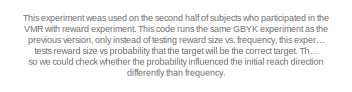
[diagram: root canvas - part 1/3, top left region]
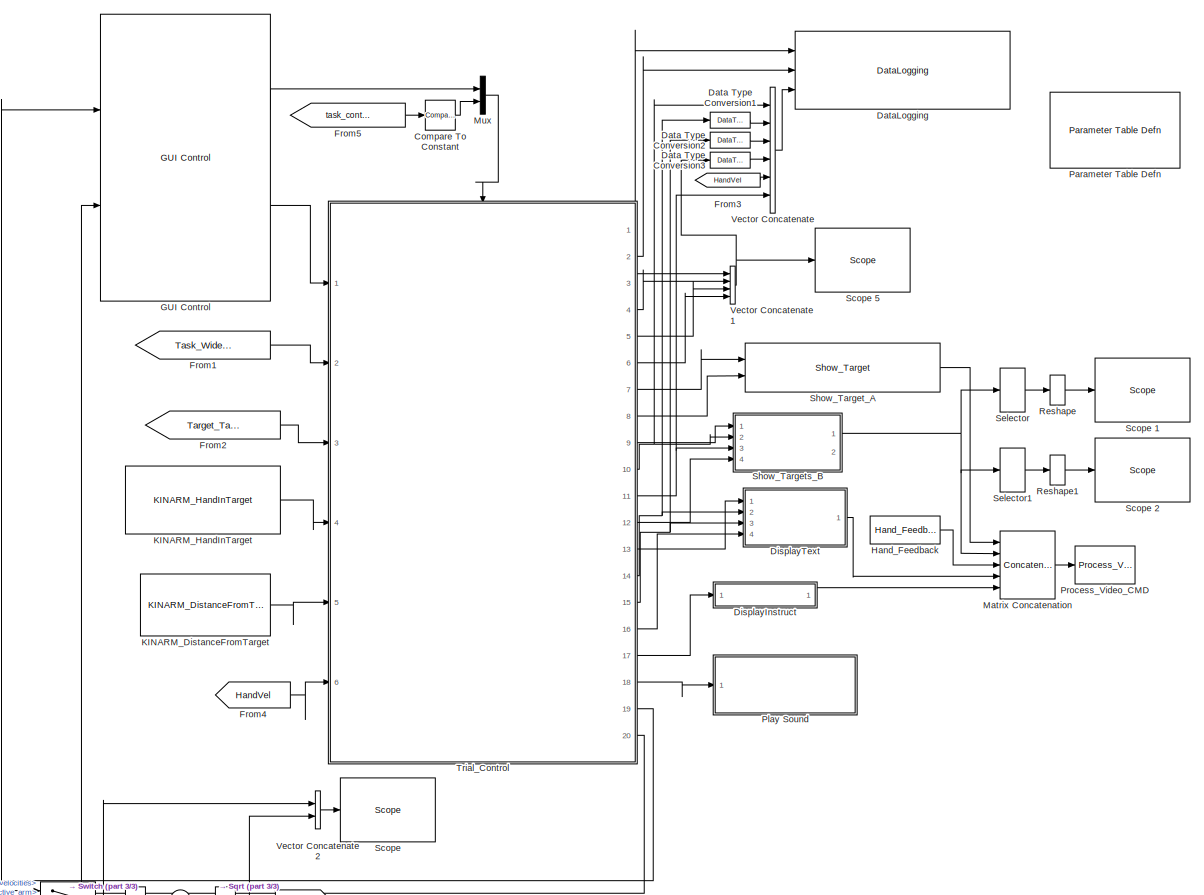
[diagram: root canvas - part 2/3, most of the canvas]
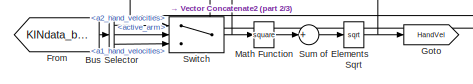
[diagram: root canvas - part 3/3, bottom left region]
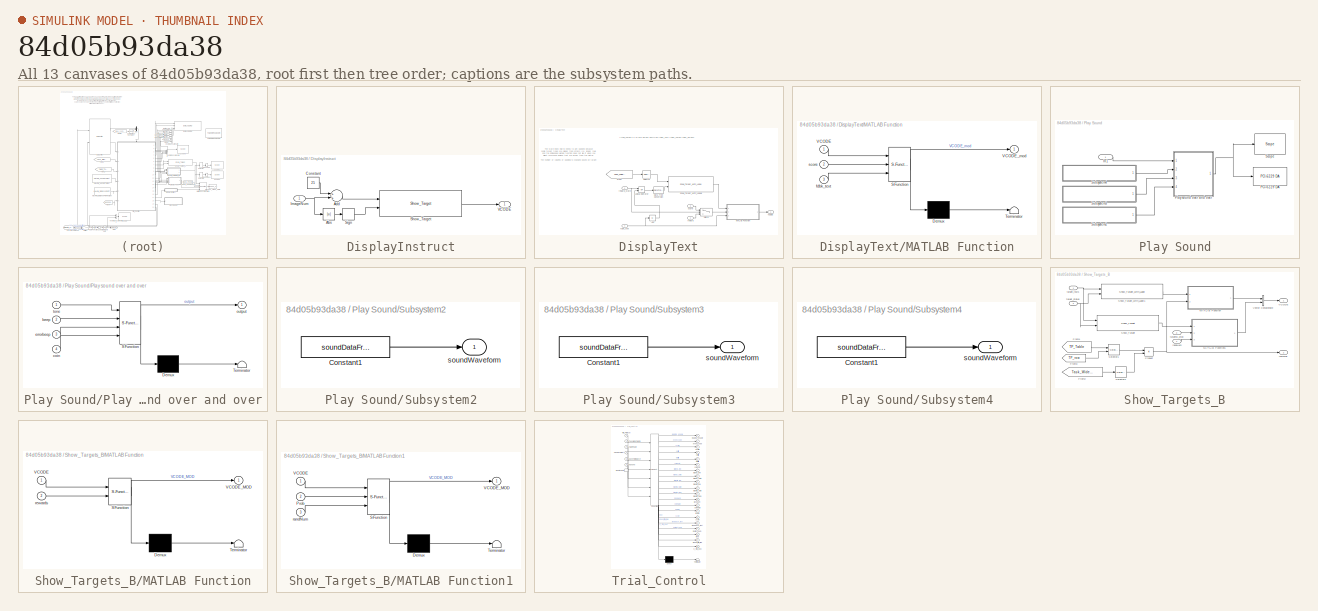
[diagram: thumbnail index - all 13 canvases of the model, root first then tree order]
MODEL slx_84d05b93da38
KIND model
CONFIG AbsTol = auto
CONFIG FixedStep = BKIN_STEP_TIME
CONFIG MaxStep = auto
CONFIG MinStep = auto
CONFIG RelTol = 1e-3
CONFIG SampleTimeConstraint = Unconstrained
CONFIG Solver = ode4
CONFIG SolverMode = MultiTasking
CONFIG SolverName = ode4
CONFIG StartFcn =  warndlg('Dexterit-E models cannot run under simulation. Please compile your model and run it from within Dexterit-E.');set_param(bdroot,'SimulationCommand','stop')
CONFIG StartTime = 0.0
CONFIG StopTime = inf
WORKSPACE source: MAT-file member
WORKSPACE BKIN_STEP_TIME = 0.00025
WORKSPACE col_x = 1
BLOCK [BusSelector] Bus Selector
  OutputSignals = Robot2.a2_hand_velocities,KINDataGeneral.active_arm,Robot1.a1_hand_velocities
  Ports = [1, 3]
BLOCK [Reference] Compare To Constant  REF=simulink/Logic and Bit
Operations/Compare
To Constant
  OutDataTypeStr = boolean
  Ports = [1, 1]
  SourceBlock = simulink/Logic and Bit\nOperations/Compare\nTo Constant
  SourceType = Compare To Constant
  ZeroCross = on
  const = 2
  relop = ==
BLOCK [DataTypeConversion] Data Type Conversion1
  RndMeth = Floor
  SaturateOnIntegerOverflow = off
BLOCK [DataTypeConversion] Data Type Conversion2
  RndMeth = Floor
  SaturateOnIntegerOverflow = off
BLOCK [DataTypeConversion] Data Type Conversion3
  RndMeth = Floor
  SaturateOnIntegerOverflow = off
BLOCK [Reference] DataLogging  REF=General/DataLogging
  Ports = [3]
  SourceBlock = General/DataLogging
  SourceType = DataLogging
  log_analog_inputs = on
  log_event_codes = on
  show_time_remaining = off
BLOCK [SubSystem] DisplayInstruct
  Ports = [1, 1]
  RequestExecContextInheritance = off
BLOCK [Abs] DisplayInstruct/Abs
  SaturateOnIntegerOverflow = off
BLOCK [Sum] DisplayInstruct/Add
  InputSameDT = off
  OutDataTypeStr = Inherit: Inherit via internal rule
  Ports = [2, 1]
  SaturateOnIntegerOverflow = off
BLOCK [Constant] DisplayInstruct/Constant
  Value = 25
BLOCK [Inport] DisplayInstruct/ImageNum
  IconDisplay = Port number
BLOCK [Reference] DisplayInstruct/Show_Target  REF=Video/Show_Target
  Ports = [2, 1]
  SourceBlock = Video/Show_Target
  SourceType = Show_Target
  attribcol1 = [INIT_COLOR 0 0 VISUAL_RADIUS LABEL_HEIGHT 0]
  attribcol2 = [6 6 0 3 0 0]
  attribcol3 = [0 0 0 0 0 0]
  attribcol4 = [0 0 0 0 0 0]
  attribcol5 = [0 0 24 0 0 0]
  num_col = 6
  num_states = 1
  opacity = 100
  source = dialog
  stateindices_padding = [0 0 0 0 0;0 0 0 0 0;0 0 0 0 0;0 0 0 0 0;0 0 0 0 0]
  target_display = Both subject and operator displays
  target_type = Rectangle
BLOCK [Signum] DisplayInstruct/Sign
BLOCK [Outport] DisplayInstruct/VCODE
  IconDisplay = Port number
BLOCK [SubSystem] DisplayText
  Ports = [4, 1]
  RequestExecContextInheritance = off
BLOCK [Abs] DisplayText/Abs
  SaturateOnIntegerOverflow = off
BLOCK [DataTypeConversion] DisplayText/Data Type Conversion
  OutDataTypeStr = double
  RndMeth = Floor
  SaturateOnIntegerOverflow = off
BLOCK [From] DisplayText/From
  GotoTag = Task_Wide_Parameters
  TagVisibility = global
BLOCK [Logic] DisplayText/Logical Operator
  AllPortsSameDT = off
  Operator = OR
  OutDataTypeStr = boolean
  Ports = [2, 1]
BLOCK [SubSystem] DisplayText/MATLAB Function
  ErrorFcn = Stateflow.Translate.translate
  PermitHierarchicalResolution = ExplicitOnly
  Ports = [3, 1]
  RequestExecContextInheritance = off
  SFBlockType = MATLAB Function
  TreatAsAtomicUnit = on
BLOCK [Demux] DisplayText/MATLAB Function/ Demux 
  Outputs = 1
  Ports = [1, 1]
BLOCK [S-Function] DisplayText/MATLAB Function/ SFunction 
  EnableBusSupport = on
  FunctionName = sf_sfun
  PortCounts = [3 2]
  Ports = [3, 2]
  Tag = Stateflow S-Function gbyk_rwd_tgtprob 6
BLOCK [Terminator] DisplayText/MATLAB Function/ Terminator 
BLOCK [Inport] DisplayText/MATLAB Function/VCODE
  IconDisplay = Port number
BLOCK [Outport] DisplayText/MATLAB Function/VCODE_mod
  IconDisplay = Port number
BLOCK [Inport] DisplayText/MATLAB Function/fdbk_text
  IconDisplay = Port number
  Port = 3
BLOCK [Inport] DisplayText/MATLAB Function/score
  IconDisplay = Port number
  Port = 2
BLOCK [Selector] DisplayText/Selector
  Indices = [K_SCORETEXT_ROW]
  InputPortWidth = 50
  Ports = [1, 1]
BLOCK [Reference] DisplayText/Show_Target_With_Label1  REF=Video/Show_Target_With_Label
  Ports = [2, 1]
  SourceBlock = Video/Show_Target_With_Label
  SourceType = Show_Target_With_Label
  attribcol1 = [INIT_COLOR 0 0 VISUAL_RADIUS VISUAL_RADIUS 0 LABEL TEXT_COLOR LABEL_HEIGHT]
  attribcol2 = [6 6 0 3 0 0 0 0 0]
  attribcol3 = [0 0 0 0 0 0 0 0 0]
  attribcol4 = [0 0 0 0 0 0 0 0 0]
  attribcol5 = [0 0 24 0 0 0 0 0 0]
  num_states = 1
  opacity = 100
  source = dialog
  stateindices_padding = [0 0;0 0;0 0;0 0;0 0]
  target_display = Both subject and operator displays
  target_type = Rectangle
BLOCK [Switch] DisplayText/Switch
  Criteria = u2 > Threshold
  InputSameDT = off
  SaturateOnIntegerOverflow = off
  Threshold = 1.5
BLOCK [Outport] DisplayText/VCODE
  IconDisplay = Port number
BLOCK [Inport] DisplayText/fdbk_text
  IconDisplay = Port number
  OutDataTypeStr = int32
  Port = 4
BLOCK [Inport] DisplayText/reward
  IconDisplay = Port number
  OutDataTypeStr = int32
  Port = 2
BLOCK [Inport] DisplayText/reward_state
  IconDisplay = Port number
  OutDataTypeStr = double
BLOCK [Inport] DisplayText/score
  IconDisplay = Port number
  OutDataTypeStr = int32
  Port = 3
BLOCK [From] From
  GotoTag = KINdata_bus
  TagVisibility = global
BLOCK [From] From1
  GotoTag = Task_Wide_Parameters
  TagVisibility = global
BLOCK [From] From2
  GotoTag = Target_Table
  TagVisibility = global
BLOCK [From] From3
  GotoTag = HandVel
BLOCK [From] From4
  GotoTag = HandVel
BLOCK [From] From5
  GotoTag = task_control_button
  TagVisibility = global
BLOCK [Reference] GUI Control  REF=General/GUI Control
  Lcols = 4
  Ports = [2, 2]
  SourceBlock = General/GUI Control
  SourceType = GUI Control
  Target_Type = 1
  Vcols = 3
  XYcols = [1 2]
  indices_padding = [0 0 0 0;0 0 0 0]
  load_table_rows = 20
  show_repeat_trial_flag = on
  target_table_rows = 32
  target_type_str = Circle
  task_version = 1.0
  tp_table_rows = 100
BLOCK [Goto] Goto
  GotoTag = HandVel
BLOCK [Reference] Hand_Feedback  REF=KINARM_general/Hand_Feedback
  Ports = [0, 1]
  SourceBlock = KINARM_general/Hand_Feedback
  SourceType = Hand Feedback
  feedback_cntl_src = none
BLOCK [Reference] KINARM_DistanceFromTarget  REF=KINARM_general/KINARM_DistanceFromTarget
  Ports = [0, 1]
  SourceBlock = KINARM_general/KINARM_DistanceFromTarget
  SourceType = KINARM_DistanceFromTarget
  use_dominant_hand = on
BLOCK [Reference] KINARM_HandInTarget  REF=KINARM_general/KINARM_HandInTarget
  Ports = [0, 1]
  SourceBlock = KINARM_general/KINARM_HandInTarget
  SourceType = KINARM_HandInTarget
  attribcol1 = [LOGICAL_RADIUS]
  attribcol2 = [4]
  attribcol3 = [5]
  attribcol4 = [6]
  attribcol5 = [0]
  num_states = 1
  target_type = Circle
  use_dominant_hand = on
BLOCK [Math] Math Function
  Operator = square
  Ports = [1, 1]
BLOCK [Concatenate] Matrix Concatenation
  Mode = Multidimensional array
  NumInputs = 5
  Ports = [5, 1]
BLOCK [Mux] Mux
  DisplayOption = bar
  Inputs = 2
  Ports = [2, 1]
BLOCK [Reference] Parameter Table Defn  REF=General/Parameter Table Defn
  Ports = []
  ShowInLibBrowser = 0
  SourceBlock = General/Parameter Table Defn
  UserDataPersistent = on
BLOCK [SubSystem] Play Sound
  Ports = [1]
  RequestExecContextInheritance = off
BLOCK [Inport] Play Sound/In1
  IconDisplay = Signal name
BLOCK [Reference] Play Sound/PCI-6229 DA  REF=xpcnilib/D//A/M Series/PCI-6229 DA
  Ports = [1]
  SourceBlock = xpcnilib/D//A/M Series/PCI-6229 DA
  SourceType = danipci6229
  channel = [1]
  initValue = [0]
  reset = [1]
  sampletime = -1
  slot = -1
BLOCK [SubSystem] Play Sound/Play sound over and over
  ErrorFcn = Stateflow.Translate.translate
  PermitHierarchicalResolution = ExplicitOnly
  Ports = [4, 1]
  RequestExecContextInheritance = off
  SFBlockType = MATLAB Function
  TreatAsAtomicUnit = on
BLOCK [Demux] Play Sound/Play sound over and over/ Demux 
  Outputs = 1
  Ports = [1, 1]
BLOCK [S-Function] Play Sound/Play sound over and over/ SFunction 
  EnableBusSupport = on
  FunctionName = sf_sfun
  PortCounts = [4 2]
  Ports = [4, 2]
  Tag = Stateflow S-Function gbyk_rwd_tgtprob 4
BLOCK [Terminator] Play Sound/Play sound over and over/ Terminator 
BLOCK [Inport] Play Sound/Play sound over and over/beep
  IconDisplay = Port number
  Port = 2
BLOCK [Inport] Play Sound/Play sound over and over/coin
  IconDisplay = Port number
  Port = 4
BLOCK [Inport] Play Sound/Play sound over and over/errorbeep
  IconDisplay = Port number
  Port = 3
BLOCK [Outport] Play Sound/Play sound over and over/output
  IconDisplay = Port number
BLOCK [Inport] Play Sound/Play sound over and over/tone
  IconDisplay = Port number
BLOCK [Reference] Play Sound/Scope   REF=slrtlib/Displays and
Logging/Scope 
  Ports = [1]
  SourceBlock = slrtlib/Displays and\nLogging/Scope
  SourceType = xpcscopeblock
  autorestart = off
  autostart = on
  dynamicfilemode = off
  filename = data.dat
  formatstr = '%15.6f'
  grid = on
  interleave = 1
  maxwritefilesize = 512*1024^2
  mode = Lazy
  noprepostsamples = 0
  nosamples = 4000
  scopeno = 4
  scopetype = Target
  triggerlevel = 0.0
  triggermode = FreeRun
  triggersample = 0
  triggerscope = 1
  triggersignal = 1
  triggerslope = Either
  trigsignalfromport = off
  viewmode = Graphical redraw
  writesize = 512
  ylimits = [0,0]
BLOCK [SubSystem] Play Sound/Subsystem2
  Ports = [0, 1]
  RequestExecContextInheritance = off
BLOCK [Constant] Play Sound/Subsystem2/Constant1
  Value = soundDataFromFile
BLOCK [Outport] Play Sound/Subsystem2/soundWaveform
  IconDisplay = Port number
BLOCK [SubSystem] Play Sound/Subsystem3
  Ports = [0, 1]
  RequestExecContextInheritance = off
BLOCK [Constant] Play Sound/Subsystem3/Constant1
  Value = soundDataFromFile
BLOCK [Outport] Play Sound/Subsystem3/soundWaveform
  IconDisplay = Port number
BLOCK [SubSystem] Play Sound/Subsystem4
  Ports = [0, 1]
  RequestExecContextInheritance = off
BLOCK [Constant] Play Sound/Subsystem4/Constant1
  Value = soundDataFromFile
BLOCK [Outport] Play Sound/Subsystem4/soundWaveform
  IconDisplay = Port number
BLOCK [Reference] Process_Video_CMD  REF=Video/Process_Video_CMD
  Ports = [1]
  SourceBlock = Video/Process_Video_CMD
  SourceType = Process_Video_CMD
  video_delay = 50
BLOCK [Reshape] Reshape
  Ports = [1, 1]
BLOCK [Reshape] Reshape1
  Ports = [1, 1]
BLOCK [Reference] Scope   REF=slrtlib/Displays and
Logging/Scope 
  Ports = [1]
  SourceBlock = slrtlib/Displays and\nLogging/Scope
  SourceType = xpcscopeblock
  autorestart = off
  autostart = on
  dynamicfilemode = off
  filename = data.dat
  formatstr = '%15.6f'
  grid = on
  interleave = 1
  maxwritefilesize = 512*1024^2
  mode = Lazy
  noprepostsamples = 0
  nosamples = 250
  scopeno = 1
  scopetype = Target
  triggerlevel = 0.0
  triggermode = FreeRun
  triggersample = 0
  triggerscope = 1
  triggersignal = 1
  triggerslope = Either
  trigsignalfromport = off
  viewmode = Numerical
  writesize = 512
  ylimits = [0,0]
BLOCK [Reference] Scope 1  REF=slrtlib/Displays and
Logging/Scope 
  Ports = [1]
  SourceBlock = slrtlib/Displays and\nLogging/Scope
  SourceType = xpcscopeblock
  autorestart = off
  autostart = on
  dynamicfilemode = off
  filename = data.dat
  formatstr = '%15.6f'
  grid = on
  interleave = 1
  maxwritefilesize = 512*1024^2
  mode = Lazy
  noprepostsamples = 0
  nosamples = 250
  scopeno = 2
  scopetype = Target
  triggerlevel = 0.0
  triggermode = FreeRun
  triggersample = 0
  triggerscope = 1
  triggersignal = 1
  triggerslope = Either
  trigsignalfromport = off
  viewmode = Numerical
  writesize = 512
  ylimits = [0,0]
BLOCK [Reference] Scope 2  REF=slrtlib/Displays and
Logging/Scope 
  Ports = [1]
  SourceBlock = slrtlib/Displays and\nLogging/Scope
  SourceType = xpcscopeblock
  autorestart = off
  autostart = on
  dynamicfilemode = off
  filename = data.dat
  formatstr = '%15.6f'
  grid = on
  interleave = 1
  maxwritefilesize = 512*1024^2
  mode = Lazy
  noprepostsamples = 0
  nosamples = 250
  scopeno = 3
  scopetype = Target
  triggerlevel = 0.0
  triggermode = FreeRun
  triggersample = 0
  triggerscope = 1
  triggersignal = 1
  triggerslope = Either
  trigsignalfromport = off
  viewmode = Numerical
  writesize = 512
  ylimits = [0,0]
BLOCK [Reference] Scope 5  REF=slrtlib/Displays and
Logging/Scope 
  Ports = [1]
  SourceBlock = slrtlib/Displays and\nLogging/Scope
  SourceType = xpcscopeblock
  autorestart = off
  autostart = on
  dynamicfilemode = off
  filename = data.dat
  formatstr = '%15.6f'
  grid = on
  interleave = 1
  maxwritefilesize = 512*1024^2
  mode = Lazy
  noprepostsamples = 0
  nosamples = 250
  scopeno = 6
  scopetype = Target
  triggerlevel = 0.0
  triggermode = FreeRun
  triggersample = 0
  triggerscope = 1
  triggersignal = 1
  triggerslope = Either
  trigsignalfromport = off
  viewmode = Numerical
  writesize = 512
  ylimits = [0,0]
BLOCK [Selector] Selector
  IndexOptions = Index vector (dialog),Index vector (dialog)
  Indices = [1:2],[2 3 4 15 16]
  InputPortWidth = 3
  NumberOfDimensions = 2
  OutputSizes = 1,1
  Ports = [1, 1]
BLOCK [Selector] Selector1
  IndexOptions = Index vector (dialog),Index vector (dialog)
  Indices = [3:4],[2 3 4 9]
  InputPortWidth = 3
  NumberOfDimensions = 2
  OutputSizes = 1,1
  Ports = [1, 1]
BLOCK [Reference] Show_Target_A  REF=Video/Show_Target
  Ports = [2, 1]
  SourceBlock = Video/Show_Target
  SourceType = Show_Target
  attribcol1 = [INIT_COLOR 0 0 VISUAL_RADIUS]
  attribcol2 = [HIT_COLOR 0 0 VISUAL_RADIUS]
  attribcol3 = [0 0 0 0]
  attribcol4 = [0 0 0 0]
  attribcol5 = [0 0 24 0]
  num_col = 4
  num_states = 2
  opacity = 100
  source = dialog
  stateindices_padding = [0 0 0 0 0 0 0;0 0 0 0 0 0 0;0 0 0 0 0 0 0;0 0 0 0 0 0 0;0 0 0 0 0 0 0]
  target_display = Both subject and operator displays
  target_type = Circle
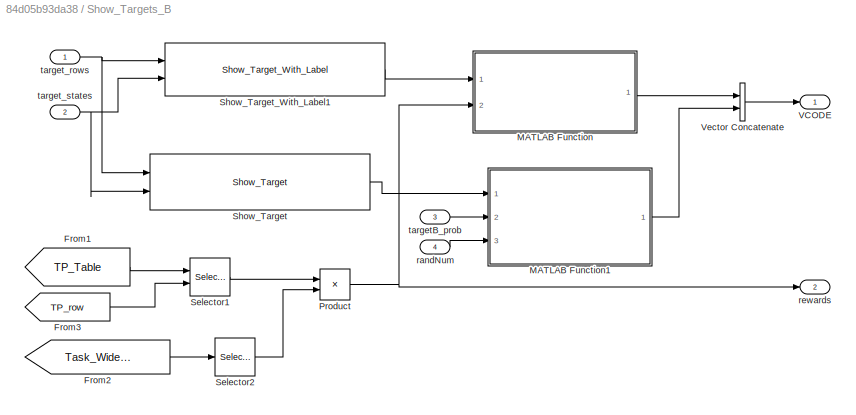
BLOCK [SubSystem] Show_Targets_B
  Ports = [4, 2]
  RequestExecContextInheritance = off
BLOCK [From] Show_Targets_B/From1
  CloseFcn = tagdialog Close
  GotoTag = TP_Table
  TagVisibility = global
BLOCK [From] Show_Targets_B/From2
  CloseFcn = tagdialog Close
  GotoTag = Task_Wide_Parameters
  TagVisibility = global
BLOCK [From] Show_Targets_B/From3
  GotoTag = TP_row
  TagVisibility = global
BLOCK [SubSystem] Show_Targets_B/MATLAB Function
  ErrorFcn = Stateflow.Translate.translate
  PermitHierarchicalResolution = ExplicitOnly
  Ports = [2, 1]
  RequestExecContextInheritance = off
  SFBlockType = MATLAB Function
  TreatAsAtomicUnit = on
BLOCK [Demux] Show_Targets_B/MATLAB Function/ Demux 
  Outputs = 1
  Ports = [1, 1]
BLOCK [S-Function] Show_Targets_B/MATLAB Function/ SFunction 
  EnableBusSupport = on
  FunctionName = sf_sfun
  PortCounts = [2 2]
  Ports = [2, 2]
  Tag = Stateflow S-Function gbyk_rwd_tgtprob 2
BLOCK [Terminator] Show_Targets_B/MATLAB Function/ Terminator 
BLOCK [Inport] Show_Targets_B/MATLAB Function/VCODE
  IconDisplay = Port number
BLOCK [Outport] Show_Targets_B/MATLAB Function/VCODE_MOD
  IconDisplay = Port number
BLOCK [Inport] Show_Targets_B/MATLAB Function/rewards
  IconDisplay = Port number
  Port = 2
BLOCK [SubSystem] Show_Targets_B/MATLAB Function1
  ErrorFcn = Stateflow.Translate.translate
  PermitHierarchicalResolution = ExplicitOnly
  Ports = [3, 1]
  RequestExecContextInheritance = off
  SFBlockType = MATLAB Function
  TreatAsAtomicUnit = on
BLOCK [Demux] Show_Targets_B/MATLAB Function1/ Demux 
  Outputs = 1
  Ports = [1, 1]
BLOCK [S-Function] Show_Targets_B/MATLAB Function1/ SFunction 
  EnableBusSupport = on
  FunctionName = sf_sfun
  PortCounts = [3 2]
  Ports = [3, 2]
  Tag = Stateflow S-Function gbyk_rwd_tgtprob 3
BLOCK [Terminator] Show_Targets_B/MATLAB Function1/ Terminator 
BLOCK [Inport] Show_Targets_B/MATLAB Function1/Prob
  IconDisplay = Port number
  Port = 2
BLOCK [Inport] Show_Targets_B/MATLAB Function1/VCODE
  IconDisplay = Port number
BLOCK [Outport] Show_Targets_B/MATLAB Function1/VCODE_MOD
  IconDisplay = Port number
BLOCK [Inport] Show_Targets_B/MATLAB Function1/randNum
  IconDisplay = Port number
  Port = 3
BLOCK [Product] Show_Targets_B/Product
  InputSameDT = off
  OutDataTypeStr = Inherit: Inherit via internal rule
  Ports = [2, 1]
  RndMeth = Floor
  SaturateOnIntegerOverflow = off
BLOCK [Selector] Show_Targets_B/Selector1
  IndexOptions = Index vector (port),Index vector (dialog)
  Indices = [],[RWD_TARGET1_COL RWD_TARGET2_COL]
  InputPortWidth = 100
  NumberOfDimensions = 2
  OutputSizes = 1,1
  Ports = [2, 1]
BLOCK [Selector] Show_Targets_B/Selector2
  Indices = [K_REWARD_VAL]
  InputPortWidth = 50
  Ports = [1, 1]
BLOCK [Reference] Show_Targets_B/Show_Target  REF=Video/Show_Target
  Ports = [2, 1]
  SourceBlock = Video/Show_Target
  SourceType = Show_Target
  attribcol1 = [INIT_COLOR INIT_COLOR STROKE_WIDTH TARGET_SIZE TARGET_SIZE 0]
  attribcol2 = [INIT_COLOR INIT_COLOR STROKE_WIDTH TARGET_SIZE TARGET_SIZE 0]
  attribcol3 = [HIT_COLOR HIT_COLOR STROKE_WIDTH TARGET_SIZE TARGET_SIZE 0]
  attribcol4 = [0 0 0 0 0 0]
  attribcol5 = [0 0 24 0 0 0]
  num_col = 6
  num_states = 3
  opacity = 100
  source = dialog
  stateindices_padding = [0 0 0 0 0;0 0 0 0 0;0 0 0 0 0;0 0 0 0 0;0 0 0 0 0]
  target_display = Both subject and operator displays
  target_type = Rectangle
BLOCK [Reference] Show_Targets_B/Show_Target_With_Label1  REF=Video/Show_Target_With_Label
  Ports = [2, 1]
  SourceBlock = Video/Show_Target_With_Label
  SourceType = Show_Target_With_Label
  attribcol1 = [0 0 0 VISUAL_RADIUS LABEL TEXT_COLOR LABEL_HEIGHT]
  attribcol2 = [0 0 0 VISUAL_RADIUS LABEL TEXT_COLOR LABEL_HEIGHT]
  attribcol3 = [0 0 0 VISUAL_RADIUS LABEL TEXT_COLOR LABEL_HEIGHT]
  attribcol4 = [0 0 0 0 0 0 0]
  attribcol5 = [0 0 24 0 0 0 0]
  num_states = 3
  opacity = 100
  source = dialog
  stateindices_padding = [0 0 0 0;0 0 0 0;0 0 0 0;0 0 0 0;0 0 0 0]
  target_display = Both subject and operator displays
  target_type = Circle
BLOCK [Outport] Show_Targets_B/VCODE
  IconDisplay = Port number
BLOCK [Concatenate] Show_Targets_B/Vector Concatenate
  Mode = Multidimensional array
  Ports = [2, 1]
BLOCK [Inport] Show_Targets_B/randNum
  IconDisplay = Port number
  Port = 4
BLOCK [Outport] Show_Targets_B/rewards
  IconDisplay = Port number
  Port = 2
BLOCK [Inport] Show_Targets_B/targetB_prob
  IconDisplay = Port number
  Port = 3
BLOCK [Inport] Show_Targets_B/target_rows
  IconDisplay = Port number
BLOCK [Inport] Show_Targets_B/target_states
  IconDisplay = Port number
  Port = 2
BLOCK [Sqrt] Sqrt
BLOCK [Sum] Sum of Elements
  InputSameDT = off
  Inputs = +
  OutDataTypeStr = Inherit: Inherit via internal rule
  Ports = [1, 1]
  SaturateOnIntegerOverflow = off
BLOCK [Switch] Switch
  Criteria = u2 > Threshold
  InputSameDT = off
  SaturateOnIntegerOverflow = off
  Threshold = 1.5
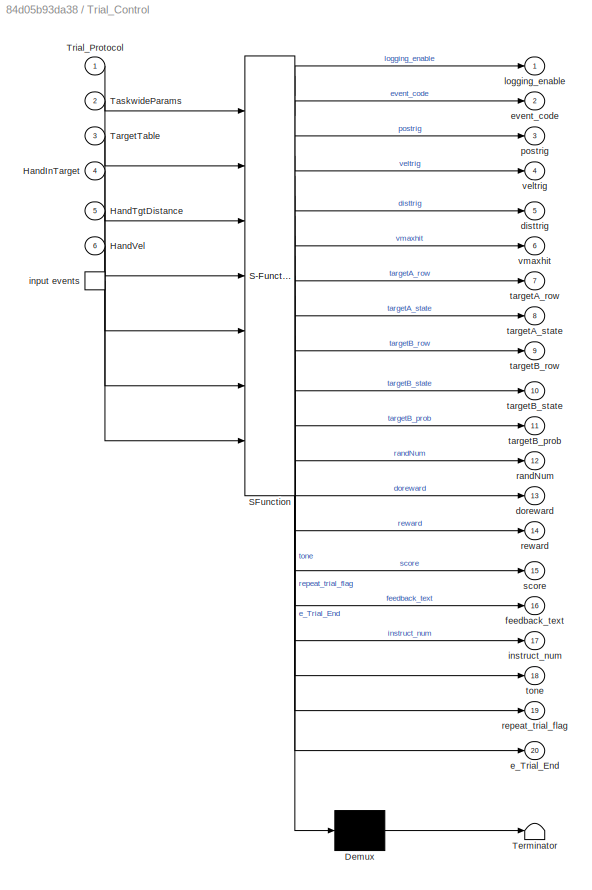
BLOCK [SubSystem] Trial_Control
  ErrorFcn = Stateflow.Translate.translate
  PermitHierarchicalResolution = ExplicitOnly
  Ports = [6, 20, 0, 1]
  RequestExecContextInheritance = off
  SFBlockType = Chart
  TreatAsAtomicUnit = on
BLOCK [Demux] Trial_Control/ Demux 
  Outputs = 1
  Ports = [1, 1]
BLOCK [S-Function] Trial_Control/ SFunction 
  EnableBusSupport = on
  FunctionName = sf_sfun
  PortCounts = [7 21]
  Ports = [7, 21]
  Tag = Stateflow S-Function gbyk_rwd_tgtprob 1
BLOCK [Terminator] Trial_Control/ Terminator 
BLOCK [TriggerPort] Trial_Control/ input events 
  Ports = [0, 1]
  ShowOutputPort = on
  TriggerType = either
BLOCK [Inport] Trial_Control/HandInTarget
  IconDisplay = Port number
  Port = 4
BLOCK [Inport] Trial_Control/HandTgtDistance
  IconDisplay = Port number
  Port = 5
BLOCK [Inport] Trial_Control/HandVel
  IconDisplay = Port number
  Port = 6
BLOCK [Inport] Trial_Control/TargetTable
  IconDisplay = Port number
  Port = 3
BLOCK [Inport] Trial_Control/TaskwideParams
  IconDisplay = Port number
  Port = 2
BLOCK [Inport] Trial_Control/Trial_Protocol
  IconDisplay = Port number
BLOCK [Outport] Trial_Control/disttrig
  IconDisplay = Port number
  Port = 5
BLOCK [Outport] Trial_Control/doreward
  IconDisplay = Port number
  Port = 13
BLOCK [Outport] Trial_Control/e_Trial_End
  IconDisplay = Port number
  Port = 20
BLOCK [Outport] Trial_Control/event_code
  IconDisplay = Port number
  Port = 2
BLOCK [Outport] Trial_Control/feedback_text
  IconDisplay = Port number
  Port = 16
BLOCK [Outport] Trial_Control/instruct_num
  IconDisplay = Port number
  Port = 17
BLOCK [Outport] Trial_Control/logging_enable
  IconDisplay = Port number
BLOCK [Outport] Trial_Control/postrig
  IconDisplay = Port number
  Port = 3
BLOCK [Outport] Trial_Control/randNum
  IconDisplay = Port number
  Port = 12
BLOCK [Outport] Trial_Control/repeat_trial_flag
  IconDisplay = Port number
  Port = 19
BLOCK [Outport] Trial_Control/reward
  IconDisplay = Port number
  Port = 14
BLOCK [Outport] Trial_Control/score
  IconDisplay = Port number
  Port = 15
BLOCK [Outport] Trial_Control/targetA_row
  IconDisplay = Port number
  Port = 7
BLOCK [Outport] Trial_Control/targetA_state
  IconDisplay = Port number
  Port = 8
BLOCK [Outport] Trial_Control/targetB_prob
  IconDisplay = Port number
  Port = 11
BLOCK [Outport] Trial_Control/targetB_row
  IconDisplay = Port number
  Port = 9
BLOCK [Outport] Trial_Control/targetB_state
  IconDisplay = Port number
  Port = 10
BLOCK [Outport] Trial_Control/tone
  IconDisplay = Port number
  Port = 18
BLOCK [Outport] Trial_Control/veltrig
  IconDisplay = Port number
  Port = 4
BLOCK [Outport] Trial_Control/vmaxhit
  IconDisplay = Port number
  Port = 6
BLOCK [Concatenate] Vector Concatenate
  NumInputs = 6
  Ports = [6, 1]
BLOCK [Concatenate] Vector Concatenate1
  NumInputs = 4
  Ports = [4, 1]
BLOCK [Concatenate] Vector Concatenate2
  Ports = [2, 1]
ANNOTATION (root): This experiment weas used on the second half of subjects who participated in the VMR with reward experiment. This code runs the same GBYK experiment as the previous version, only instead of testing reward size vs. frequency, this experiment tests reward size vs probability that the target will be the correct target. This was so we could check whether the probability influenced the initial reach di...<+35ch>
ANNOTATION DisplayText: The state index matrix needs to get padded because some target types are bigger than others (i.e. longer row) and the Embedded Matlab function does not like it when you 'might' reference indices that are larger than the matrix. The number of columns of padding is changed based on target type, because Simulink requires all instances of the embedded Matlab function to have the same size input to 'st...<+12ch>
ANNOTATION DisplayText: [TARG_COLOR 0 0 WIDTH HEIGHT ROTATION LABEL_TEXT LABEL_COLOR LABEL_HEIGHT]
LINE Bus Selector:1 -> Switch:1
LINE Bus Selector:2 -> Switch:2
LINE Bus Selector:3 -> Switch:3
LINE Compare To Constant:1 -> Mux:2
LINE Data Type Conversion1:1 -> Vector Concatenate:2
LINE Data Type Conversion2:1 -> Vector Concatenate:3
LINE Data Type Conversion3:1 -> Vector Concatenate:4
LINE DisplayInstruct/Abs:1 -> DisplayInstruct/Sign:1
LINE DisplayInstruct/Add:1 -> DisplayInstruct/Show_Target:1
LINE DisplayInstruct/Constant:1 -> DisplayInstruct/Add:1
NET DisplayInstruct/ImageNum:1 -> DisplayInstruct/Abs:1, DisplayInstruct/Add:2
LINE DisplayInstruct/Show_Target:1 -> DisplayInstruct/VCODE:1
LINE DisplayInstruct/Sign:1 -> DisplayInstruct/Show_Target:2
LINE DisplayInstruct:1 -> Matrix Concatenation:5
LINE DisplayText/Abs:1 -> DisplayText/Logical Operator:2
LINE DisplayText/Data Type Conversion:1 -> DisplayText/Show_Target_With_Label1:2
LINE DisplayText/From:1 -> DisplayText/Selector:1
LINE DisplayText/Logical Operator:1 -> DisplayText/Data Type Conversion:1
LINE DisplayText/MATLAB Function:1 -> DisplayText/VCODE:1
LINE DisplayText/Selector:1 -> DisplayText/Show_Target_With_Label1:1
LINE DisplayText/Show_Target_With_Label1:1 -> DisplayText/MATLAB Function:1
LINE DisplayText/Switch:1 -> DisplayText/MATLAB Function:2
NET DisplayText/fdbk_text:1 -> DisplayText/Abs:1, DisplayText/MATLAB Function:3
LINE DisplayText/reward:1 -> DisplayText/Switch:3
NET DisplayText/reward_state:1 -> DisplayText/Logical Operator:1, DisplayText/Switch:2
LINE DisplayText/score:1 -> DisplayText/Switch:1
LINE DisplayText:1 -> Matrix Concatenation:4
LINE From1:1 -> Trial_Control:2
LINE From2:1 -> Trial_Control:3
LINE From3:1 -> Vector Concatenate:5
LINE From4:1 -> Trial_Control:6
LINE From5:1 -> Compare To Constant:1
LINE From:1 -> Bus Selector:1
LINE GUI Control:1 -> Mux:1
LINE GUI Control:2 -> Trial_Control:1
LINE Hand_Feedback:1 -> Matrix Concatenation:3
LINE KINARM_DistanceFromTarget:1 -> Trial_Control:5
LINE KINARM_HandInTarget:1 -> Trial_Control:4
LINE Math Function:1 -> Sum of Elements:1
LINE Matrix Concatenation:1 -> Process_Video_CMD:1
LINE Mux:1 -> Trial_Control:trigger
LINE Play Sound/In1:1 -> Play Sound/Play sound over and over:1
NET Play Sound/Play sound over and over:1 -> Play Sound/PCI-6229 DA:1, Play Sound/Scope :1
LINE Play Sound/Subsystem2/Constant1:1 -> Play Sound/Subsystem2/soundWaveform:1
LINE Play Sound/Subsystem2:1 -> Play Sound/Play sound over and over:4
LINE Play Sound/Subsystem3/Constant1:1 -> Play Sound/Subsystem3/soundWaveform:1
LINE Play Sound/Subsystem3:1 -> Play Sound/Play sound over and over:3
LINE Play Sound/Subsystem4/Constant1:1 -> Play Sound/Subsystem4/soundWaveform:1
LINE Play Sound/Subsystem4:1 -> Play Sound/Play sound over and over:2
LINE Reshape1:1 -> Scope 2:1
LINE Reshape:1 -> Scope 1:1
LINE Selector1:1 -> Reshape1:1
LINE Selector:1 -> Reshape:1
LINE Show_Target_A:1 -> Matrix Concatenation:1
LINE Show_Targets_B/From1:1 -> Show_Targets_B/Selector1:1
LINE Show_Targets_B/From2:1 -> Show_Targets_B/Selector2:1
LINE Show_Targets_B/From3:1 -> Show_Targets_B/Selector1:2
LINE Show_Targets_B/MATLAB Function1:1 -> Show_Targets_B/Vector Concatenate:2
LINE Show_Targets_B/MATLAB Function:1 -> Show_Targets_B/Vector Concatenate:1
NET Show_Targets_B/Product:1 -> Show_Targets_B/MATLAB Function:2, Show_Targets_B/rewards:1
LINE Show_Targets_B/Selector1:1 -> Show_Targets_B/Product:1
LINE Show_Targets_B/Selector2:1 -> Show_Targets_B/Product:2
LINE Show_Targets_B/Show_Target:1 -> Show_Targets_B/MATLAB Function1:1
LINE Show_Targets_B/Show_Target_With_Label1:1 -> Show_Targets_B/MATLAB Function:1
LINE Show_Targets_B/Vector Concatenate:1 -> Show_Targets_B/VCODE:1
LINE Show_Targets_B/randNum:1 -> Show_Targets_B/MATLAB Function1:3
LINE Show_Targets_B/targetB_prob:1 -> Show_Targets_B/MATLAB Function1:2
NET Show_Targets_B/target_rows:1 -> Show_Targets_B/Show_Target:1, Show_Targets_B/Show_Target_With_Label1:1
NET Show_Targets_B/target_states:1 -> Show_Targets_B/Show_Target:2, Show_Targets_B/Show_Target_With_Label1:2
NET Show_Targets_B:1 -> Matrix Concatenation:2, Selector1:1, Selector:1
NET Sqrt:1 -> Goto:1, Vector Concatenate2:2
LINE Sum of Elements:1 -> Sqrt:1
NET Switch:1 -> Math Function:1, Vector Concatenate2:1
LINE Trial_Control:1 -> DataLogging:1
NET Trial_Control:10 -> Show_Targets_B:2, Vector Concatenate:1
NET Trial_Control:11 -> Show_Targets_B:3, Vector Concatenate:6
LINE Trial_Control:12 -> Show_Targets_B:4
LINE Trial_Control:13 -> DisplayText:1
NET Trial_Control:14 -> Data Type Conversion1:1, DisplayText:2
NET Trial_Control:15 -> Data Type Conversion2:1, DisplayText:3
LINE Trial_Control:16 -> DisplayText:4
LINE Trial_Control:17 -> DisplayInstruct:1
LINE Trial_Control:18 -> Play Sound:1
LINE Trial_Control:19 -> GUI Control:1
LINE Trial_Control:2 -> DataLogging:2
LINE Trial_Control:20 -> GUI Control:2
LINE Trial_Control:3 -> Vector Concatenate1:1
LINE Trial_Control:4 -> Vector Concatenate1:2
LINE Trial_Control:5 -> Vector Concatenate1:3
LINE Trial_Control:6 -> Vector Concatenate1:4
LINE Trial_Control:7 -> Show_Target_A:1
LINE Trial_Control:8 -> Show_Target_A:2
LINE Trial_Control:9 -> Show_Targets_B:1
NET Vector Concatenate1:1 -> Data Type Conversion3:1, Scope 5:1
LINE Vector Concatenate2:1 -> Scope :1
LINE Vector Concatenate:1 -> DataLogging:3
note: NET lines group one-source signal fan-out (src -> all destinations, sorted); 1:1 wires keep LINE
CHART Trial_Control states=17 transitions=28
  STATE_LABEL 'MainTrial'
  STATE_LABEL 'ShowStartTarget/\n// Turn on first target, enable data logging, and wait for a specified time or until the hand is in the target.\ntargetA_row = Trial_Protocol[START_TARGET_COL];\ntargetA_state = 1;\nlogging_enable = 1;\nveltrig = 0;\npostrig = 0;\ndisttrig = 0;\nvmaxhit = 0;\ntargetB_state[1] = 0;\ntargetB_state[2] = 0;\ntone = 0;'
  STATE_LABEL 'StayAtFirstTarget/\n// Log an event that target was reached and wait for a specified time.\n// The wait time may have both a fixed and a random component. The hand must stay in the target for the full wait time.\nevent_code = E_STAY_START;\n//targetA_state = 1;\ntickCount = TaskwideParams[K_DELAY_FIXED] + TaskwideParams[K_DELAY_RAND] * rand() / RAND_MAX;\n//Show targets before the go tone - allows for c...<+448ch>'
  STATE_LABEL 'ShowReachTargets/\n// Turn on all reach targets and log an event indicating this has occurred. Then wait until the hand is the target or until a specified time has elapsed.\nevent_code = E_TARGETS_ON;\ntickCount = Trial_Protocol[MAX_REACH_TIME_COL];\ntone = 1;\n\nduring:\n//handvel2d = sqrt((HandVel[1])^2 + (HandVel[2])^2);\nveltrig =  (HandVel > TaskwideParams[K_TRIGGER_VEL]);\npostrig = abs(HandTgtDistan...<+49ch>'
  STATE_LABEL 'TriggerTarget/\n//shut off second reach target\nevent_code = E_TARGET_TRIGGER;\ntargetB_state[1] = 2;\ntargetB_state[2] = 0;\n\n\nduring:\npostrig = HandInTarget[targetB_row[1]]==1;\ndisttrig = abs(HandTgtDistance[targetA_row]) > (abs(TargetTable[targetB_row[1]][col_y] - TargetTable[targetA_row][col_y]) + TargetTable[targetB_row[1]][VISUAL_RADIUS])*0.01;\nvmaxhit = (vmaxhit || (HandVel > TaskwideParams[K_TH...<+53ch>'
  STATE_LABEL 'HitTarget/\n// Log a successful hit\nevent_code = E_HIT_TARGET;\ntargetB_state[1] = 3;\ndoreward = double((Trial_Protocol[RWD_TARGET1_COL] > 0) || (Trial_Protocol[RWD_TARGET2_COL] > 0));\nreward = Trial_Protocol[RWD_TARGET1_COL]*TaskwideParams[K_REWARD_VAL];\nscore += reward;\ntone = 3;\n\ntickCount = 500;'
  STATE_LABEL 'MissTarget/\n// Log a target miss\nevent_code = E_MISS_TARGET;\ntargetB_state[1] = 0;\nreward = 0;\ndoreward = 0;\ntickCount = 500;'
  STATE_LABEL 'TooSlow/\n// Log a bad trial\nevent_code = E_TOO_SLOW;\ntargetB_state[1] = 0;\nrepeat_trial_flag = 1;\nreward = 0;\ndoreward = 0;\n//feedback_text = -1;\ntone = 2\n\ntickCount = 500;'
  STATE_LABEL 'EndOfTrial/\n// Set the post-trial delay.\ntickCount = Trial_Protocol[DELAY_POST_TRIAL];'
  STATE_LABEL '[HandInTarget[targetA_row] == 1]'
  STATE_LABEL '[HandInTarget[targetA_row] == 0]'
  STATE_LABEL 'after(tickCount, e_clk)'
  STATE_LABEL 'after(tickCount, e_clk)/\nfeedback_text = -2;\n//if the trial times out it is an error'
  STATE_LABEL '[after(1,e_clk) && (veltrig || postrig)]\n//when the hand velocity pr position exceeds the threshold\n//shut off the second target'
  STATE_LABEL '[after(1,e_clk) && postrig && vmaxhit]\n//check if hit the target and moved fast enough'
  STATE_LABEL '[after(1,e_clk) && (disttrig && !postrig) && vmaxhit]/\n//check if missed the target but moved fast enough'
  STATE_LABEL '[(after(1,e_clk) && (disttrig || postrig) && vmaxhit == 0) || after(tickCount, e_clk)]/\nfeedback_text = -1;\n//check if missed the target but moved fast enough'
  STATE_LABEL 'after(tickCount, e_clk)'
  STATE_LABEL 'after(tickCount, e_clk)'
  STATE_LABEL 'after(tickCount, e_clk)'
  STATE_LABEL 'ShowStartTarget/\n// Turn on first target, enable data logging, and wait for a specified time or until the hand is in the target.\ntargetA_row = Trial_Protocol[START_TARGET_COL];\ntargetA_state = 1;\nlogging_enable = 1;\nveltrig = 0;\npostrig = 0;\ndisttrig = 0;\nvmaxhit = 0;\ntargetB_state[1] = 0;\ntargetB_state[2] = 0;\ntone = 0;'
  STATE_LABEL 'StayAtFirstTarget/\n// Log an event that target was reached and wait for a specified time.\n// The wait time may have both a fixed and a random component. The hand must stay in the target for the full wait time.\nevent_code = E_STAY_START;\n//targetA_state = 1;\ntickCount = TaskwideParams[K_DELAY_FIXED] + TaskwideParams[K_DELAY_RAND] * rand() / RAND_MAX;\n//Show targets before the go tone - allows for c...<+448ch>'
  STATE_LABEL 'ShowReachTargets/\n// Turn on all reach targets and log an event indicating this has occurred. Then wait until the hand is the target or until a specified time has elapsed.\nevent_code = E_TARGETS_ON;\ntickCount = Trial_Protocol[MAX_REACH_TIME_COL];\ntone = 1;\n\nduring:\n//handvel2d = sqrt((HandVel[1])^2 + (HandVel[2])^2);\nveltrig =  (HandVel > TaskwideParams[K_TRIGGER_VEL]);\npostrig = abs(HandTgtDistan...<+49ch>'
  STATE_LABEL 'TriggerTarget/\n//shut off second reach target\nevent_code = E_TARGET_TRIGGER;\ntargetB_state[1] = 2;\ntargetB_state[2] = 0;\n\n\nduring:\npostrig = HandInTarget[targetB_row[1]]==1;\ndisttrig = abs(HandTgtDistance[targetA_row]) > (abs(TargetTable[targetB_row[1]][col_y] - TargetTable[targetA_row][col_y]) + TargetTable[targetB_row[1]][VISUAL_RADIUS])*0.01;\nvmaxhit = (vmaxhit || (HandVel > TaskwideParams[K_TH...<+53ch>'
  STATE_LABEL 'HitTarget/\n// Log a successful hit\nevent_code = E_HIT_TARGET;\ntargetB_state[1] = 3;\ndoreward = double((Trial_Protocol[RWD_TARGET1_COL] > 0) || (Trial_Protocol[RWD_TARGET2_COL] > 0));\nreward = Trial_Protocol[RWD_TARGET1_COL]*TaskwideParams[K_REWARD_VAL];\nscore += reward;\ntone = 3;\n\ntickCount = 500;'
  STATE_LABEL 'MissTarget/\n// Log a target miss\nevent_code = E_MISS_TARGET;\ntargetB_state[1] = 0;\nreward = 0;\ndoreward = 0;\ntickCount = 500;'
  STATE_LABEL 'TooSlow/\n// Log a bad trial\nevent_code = E_TOO_SLOW;\ntargetB_state[1] = 0;\nrepeat_trial_flag = 1;\nreward = 0;\ndoreward = 0;\n//feedback_text = -1;\ntone = 2\n\ntickCount = 500;'
  STATE_LABEL 'EndOfTrial/\n// Set the post-trial delay.\ntickCount = Trial_Protocol[DELAY_POST_TRIAL];'
  STATE_LABEL 'Initialize/\n// Both the targets and data logging are initially off.\ntargetA_state = 0;\ntargetB_state[1] = 0;\ntargetB_state[2] = 0;\nlogging_enable = 0;\nscore = 0;\nreward = 0;\ndoreward = 0;\nfeedback_text = 0;\nrepeat_trial_flag = 0;'
  STATE_LABEL 'EndInstructPause/\ninstruct_num = 0;\ntickCount = Trial_Protocol[DELAY_POST_TRIAL];\nlogging_enable = 1;\nscore = 0;'
  STATE_LABEL 'Ending/\n//end the special "show score" state\n//score = 0;\ne_Trial_End;'
  STATE_LABEL 'ReturnToStart1/\n\ntargetA_state=1;\ntargetB_state[1] = 0;\ntargetB_state[2] = 0;\nfeedback_text = 0;\ndoreward = 0;\nrepeat_trial_flag = 0;\nlogging_enable = 1;\n'
  STATE_LABEL 'InstructWaitState/\n//"pause" here until the button has been clicked\n'
  STATE_LABEL 'ShowScoreState/\nevent_code = E_SHOW_SCORE;\ntargetA_state = 0;\ntargetB_state[1] = 0;\ntargetB_state[2] = 0;\ndoreward = 2;\ntickCount = Trial_Protocol[MAX_REACH_TIME_COL];\nlogging_enable = 0;\n'
  STATE_LABEL 'ShowInstructState/\nevent_code = E_SHOW_INSTRUCT;\ntargetA_state = 0;\ntargetB_state[1] = 0;\ntargetB_state[2] = 0;\ndoreward = 0;\ninstruct_num = Trial_Protocol[DISPLAY_TRIAL_COL];\ntickCount = Trial_Protocol[MAX_REACH_TIME_COL];\nlogging_enable = 0;\n'
  STATE_LABEL 'Inter_Trial_State/\n// Turn off both targets, turn off data logging, reset the\n// event code, and send the e_Trial_End Stateflow event.\nevent_code = 0;\ntargetA_state = 1;\ntargetB_state[1] = 0;\ntargetB_state[2] = 0;\nfeedback_text = 0;\ndoreward = 0;\ne_Trial_End;'
CHART Show_Targets_B/MATLAB Function states=1 transitions=1
  STATE_LABEL 'eML_blk_kernel()'
  STATE_LABEL 'SCRIPT:\nfunction VCODE_MOD  = rwd_tgt(VCODE,rewards)\n%#codegen\n\n%write out the reward value for each target\n\nVCODE_MOD = VCODE;\n\n%rewards = rwd_multipliers*rwd_val;\n\nVCODE_MOD(:,4) = VCODE_MOD(:,4)+2*VCODE_MOD(:,10); %shift the label vertically above the target\n\nfor a = 1:length(rewards)\n\n    if any(rewards)>0\n        jj = 1;\n        label = rewards(a);\n        \n        if (label < 10)\n           ...<+1110ch>'
CHART Show_Targets_B/MATLAB Function1 states=1 transitions=1
  STATE_LABEL 'eML_blk_kernel()'
  STATE_LABEL 'SCRIPT:\nfunction VCODE_MOD  = rwd_tgt(VCODE,Prob,randNum)\n%#codegen\n\n%change the target color to reflect its probability\n\nVCODE_MOD = VCODE;\nimgnum = [0,0];\nif randNum(1) == randNum(2)\n    randNum(2) = randNum(2) + 1; %add one to randNum(2) if randNums equivalent\n    if randNum(2) > 9 \n        randNum(2) = 1; %arbitry int 1:10 as a default if randNum = [9,9]\n    end\nend\n\nfor a = 1:size(VCODE_MOD,1...<+2436ch>'
CHART Play Sound/Play sound over and over states=1 transitions=1
  STATE_LABEL 'eML_blk_kernel()'
  STATE_LABEL 'SCRIPT:\nfunction output = fcn(tone,beep,errorbeep,coin)\n%#codegen\n\npersistent t last_tone_state\nif isempty(t), t = 0; end\nif isempty(last_tone_state), last_tone_state = 0; end\n\ntrigger = last_tone_state ~= tone;\nif trigger > 0\n    last_tone_state = tone;\nend\n\noutput = 0;\t\t% default\nif t == 0 && trigger > 0\n\t% start the playing of the sound.\n\tt = t + 1;\nend\n\nif tone == 1\n    data = beep;\nelseif ton...<+186ch>'
CHART DisplayText/MATLAB Function states=1 transitions=1
  STATE_LABEL 'eML_blk_kernel()'
  STATE_LABEL "SCRIPT:\nfunction VCODE_mod = fcn(VCODE,score,fdbk_text)\n\n\nVCODE_mod = VCODE;\n\nif (fdbk_text == 0)  %if this is zero, show the score\n       \n    \n    %score is in cents. potentially need to convert to dollars\n    \n    if (score < 10)\n        text1 = 'You earned ';\n        text2 = ' cents!';\n        \n        textout = [text1 int2char(int32(score)) text2];\n        \n    elseif (score < 100) %score < $...<+2184ch>"
